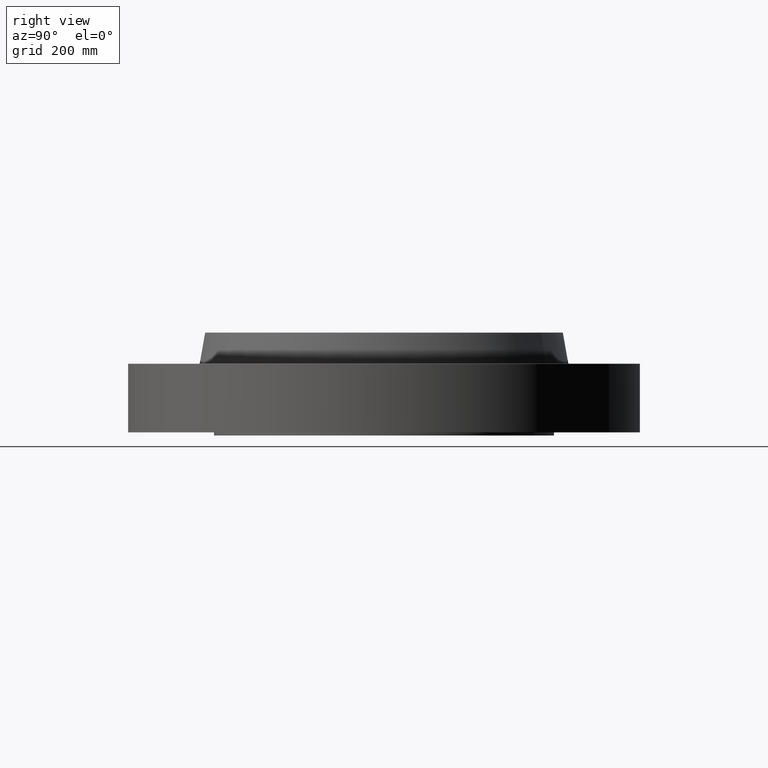
[diagram: clean part render]
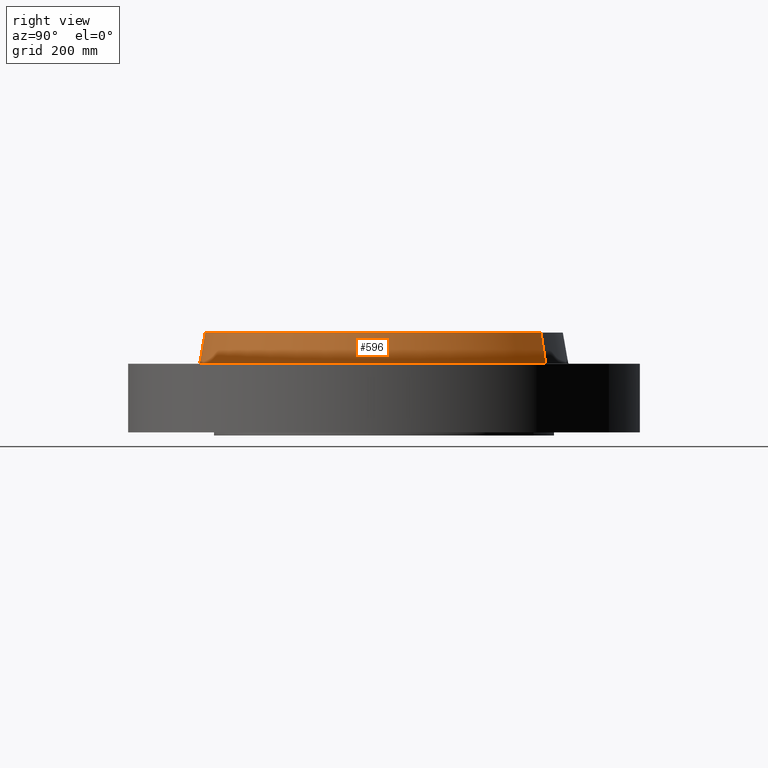
[diagram: same view with one face highlighted and labeled with its STEP entity id]
A machine part, right view. The second image highlights one B-rep face of the part: STEP entity #596.
In plain terms, the highlighted conical surface has half-angle 10 deg.
Its self-contained STEP definition (entity closure, byte-faithful):
#532=AXIS2_PLACEMENT_3D('Circle Axis2P3D',#530,#531,$) ;
#569=AXIS2_PLACEMENT_3D('Cone Axis2P3D',#566,#567,#568) ;
#580=AXIS2_PLACEMENT_3D('Circle Axis2P3D',#578,#579,$) ;
#527=CARTESIAN_POINT('Vertex',(7.06733532275,12.9366705335,5.54958110936)) ;
#530=CARTESIAN_POINT('Axis2P3D Location',(0.,0.,5.54958110936)) ;
#534=CARTESIAN_POINT('Vertex',(-7.06733532275,-12.9366705335,5.54958110936)) ;
#566=CARTESIAN_POINT('Axis2P3D Location',(0.,0.,7.95041889069)) ;
#571=CARTESIAN_POINT('Line Origine',(6.96585712232,12.7509159336,6.75000000003)) ;
#575=CARTESIAN_POINT('Vertex',(6.86437892189,12.5651613337,7.95041889069)) ;
#578=CARTESIAN_POINT('Axis2P3D Location',(0.,0.,7.95041889069)) ;
#582=CARTESIAN_POINT('Vertex',(-6.86437892189,-12.5651613337,7.95041889069)) ;
#585=CARTESIAN_POINT('Line Origine',(-6.96585712232,-12.7509159336,6.75000000003)) ;
#531=DIRECTION('Axis2P3D Direction',(0.,0.,-0.0393700787402)) ;
#567=DIRECTION('Axis2P3D Direction',(0.,0.,-0.0393700787402)) ;
#568=DIRECTION('Axis2P3D XDirection',(-0.0188750212049,-0.0345504945626,0.)) ;
#572=DIRECTION('Vector Direction',(0.00327761303565,0.00599963041829,-0.03877195878)) ;
#579=DIRECTION('Axis2P3D Direction',(0.,0.,-0.0393700787402)) ;
#586=DIRECTION('Vector Direction',(-0.00327761303565,-0.00599963041829,-0.03877195878)) ;
#573=VECTOR('Line Direction',#572,0.0393700787402) ;
#587=VECTOR('Line Direction',#586,0.0393700787402) ;
#591=ORIENTED_EDGE('',*,*,#536,.F.) ;
#592=ORIENTED_EDGE('',*,*,#577,.T.) ;
#593=ORIENTED_EDGE('',*,*,#584,.T.) ;
#594=ORIENTED_EDGE('',*,*,#589,.F.) ;
#596=ADVANCED_FACE('PartBody',(#595),#570,.T.) ;
#533=CIRCLE('generated circle',#532,14.7412575127) ;
#581=CIRCLE('generated circle',#580,14.3179250356) ;
#570=CONICAL_SURFACE('Cone',#569,14.3179250356,0.174532925199) ;
#536=EDGE_CURVE('',#528,#535,#533,.T.) ;
#577=EDGE_CURVE('',#528,#576,#574,.F.) ;
#584=EDGE_CURVE('',#576,#583,#581,.T.) ;
#589=EDGE_CURVE('',#535,#583,#588,.F.) ;
#590=EDGE_LOOP('',(#591,#592,#593,#594)) ;
#595=FACE_OUTER_BOUND('',#590,.T.) ;
#574=LINE('Line',#571,#573) ;
#588=LINE('Line',#585,#587) ;
#528=VERTEX_POINT('',#527) ;
#535=VERTEX_POINT('',#534) ;
#576=VERTEX_POINT('',#575) ;
#583=VERTEX_POINT('',#582) ;